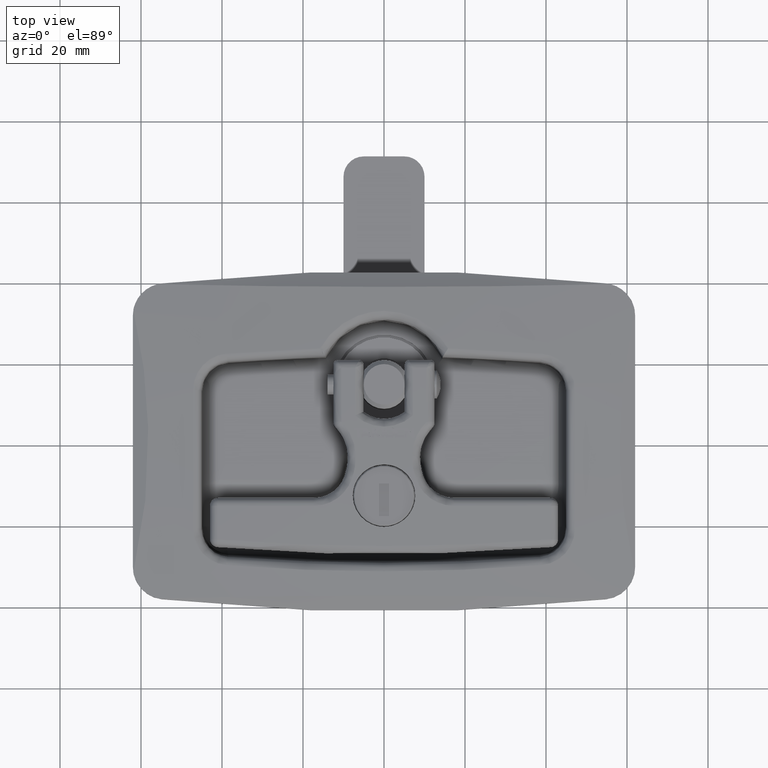
[diagram: clean part render]
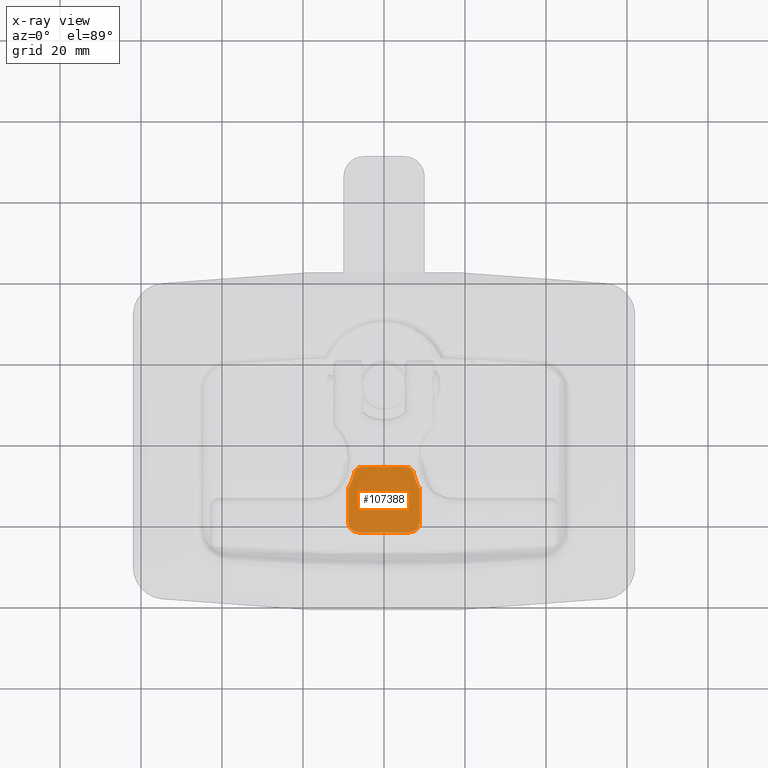
[diagram: x-ray — body ghosted, one internal face saturated and labeled with its STEP entity id]
A machine part, top view, then the same camera in x-ray: the body is ghosted and one INTERNAL B-rep face — a face not visible from any outside direction — is saturated and labeled: STEP entity #107388.
In plain terms, the highlighted planar face has unit normal (0, 0, 1).
Its self-contained STEP definition (entity closure, byte-faithful):
#44750 = EDGE_CURVE ( 'NONE', #107428, #107314, #112924, .T. ) ;
#44754 = ORIENTED_EDGE ( 'NONE', *, *, #44750, .T. ) ;
#51945 = CARTESIAN_POINT ( 'NONE',  ( 7.750233466093909000, -9.101742430316022600, -24.00000000000000000 ) ) ;
#51946 = CARTESIAN_POINT ( 'NONE',  ( 7.325904532231072100, -7.560043289058708800, -24.00000000000000000 ) ) ;
#52328 = AXIS2_PLACEMENT_3D ( 'NONE', #52392, #52391, #52390 ) ;
#52329 = CIRCLE ( 'NONE', #52328, 480.2077339804633300 ) ;
#52330 = CARTESIAN_POINT ( 'NONE',  ( -6.152111070720170700, -22.16832392820844400, -24.00000000000000000 ) ) ;
#52334 = CARTESIAN_POINT ( 'NONE',  ( 8.845299461620740500, -19.55599668142593800, -24.00000000000008500 ) ) ;
#52335 = CARTESIAN_POINT ( 'NONE',  ( 8.845299461620847100, -19.73198116399668900, -24.00000000000000700 ) ) ;
#52336 = CARTESIAN_POINT ( 'NONE',  ( 8.829917668631983600, -19.90553589965912800, -24.00000000000002800 ) ) ;
#52337 = CARTESIAN_POINT ( 'NONE',  ( 8.766339644266040000, -20.24746191933577300, -24.00000000000001800 ) ) ;
#52338 = CARTESIAN_POINT ( 'NONE',  ( 8.717281730762248800, -20.41777011301857700, -24.00000000000002500 ) ) ;
#52339 = CARTESIAN_POINT ( 'NONE',  ( 8.586051156097775900, -20.74131636712193600, -24.00000000000003200 ) ) ;
#52340 = CARTESIAN_POINT ( 'NONE',  ( 8.504513027258330000, -20.89437836561182500, -23.99999999999997900 ) ) ;
#52341 = CARTESIAN_POINT ( 'NONE',  ( 8.308647644356105000, -21.18256396352376600, -23.99999999999998200 ) ) ;
#52342 = CARTESIAN_POINT ( 'NONE',  ( 8.193336129919941900, -21.31792910883982000, -23.99999999999997900 ) ) ;
#52343 = CARTESIAN_POINT ( 'NONE',  ( 7.814398358859340200, -21.67669170596936500, -23.99999999999997500 ) ) ;
#52344 = CARTESIAN_POINT ( 'NONE',  ( 7.508005306153822100, -21.86185457505768100, -24.00000000000000700 ) ) ;
#52345 = CARTESIAN_POINT ( 'NONE',  ( 7.017714755949422800, -22.04339016092282600, -24.00000000000001400 ) ) ;
#52346 = CARTESIAN_POINT ( 'NONE',  ( 6.846726175703698100, -22.08910331485526500, -23.99999999999999600 ) ) ;
#52347 = CARTESIAN_POINT ( 'NONE',  ( 6.502191886690057200, -22.15020583722317200, -23.99999999999999600 ) ) ;
#52348 = CARTESIAN_POINT ( 'NONE',  ( 6.328028170634263800, -22.16605703918264300, -24.00000000000000400 ) ) ;
#52349 = CARTESIAN_POINT ( 'NONE',  ( 6.152111070743606200, -22.16832392820816700, -24.00000000000000000 ) ) ;
#52352 = CARTESIAN_POINT ( 'NONE',  ( 6.152111070743606200, -22.16832392820816700, -24.00000000000000000 ) ) ;
#52353 = B_SPLINE_CURVE_WITH_KNOTS ( 'NONE', 3,
 ( #52349, #52348, #52347, #52346, #52345, #52344, #52343, #52342, #52341, #52340, #52339, #52338, #52337, #52336, #52335, #52334 ),
 .UNSPECIFIED., .F., .F.,
 ( 4, 2, 2, 2, 2, 2, 2, 4 ),
 ( 0.0000000000000000000, 0.0005242809319807564700, 0.001048561863961512900, 0.002097123727923023700, 0.002621404659903776900, 0.003145685591884529700, 0.003669966523865283400, 0.004194247455846036200 ),
 .UNSPECIFIED. ) ;
#52360 = CARTESIAN_POINT ( 'NONE',  ( 8.845299461620740500, -19.55599668142593800, -24.00000000000008500 ) ) ;
#52372 = CARTESIAN_POINT ( 'NONE',  ( -6.152111070720170700, -22.16832392820844400, -24.00000000000000000 ) ) ;
#52373 = CARTESIAN_POINT ( 'NONE',  ( -6.504001473088844200, -22.16379600215499600, -24.00000000000000000 ) ) ;
#52374 = CARTESIAN_POINT ( 'NONE',  ( -6.853708156599626700, -22.10387877991446400, -23.99999999999998200 ) ) ;
#52375 = CARTESIAN_POINT ( 'NONE',  ( -7.342350092211686000, -21.92330770251799900, -23.99999999999998900 ) ) ;
#52376 = CARTESIAN_POINT ( 'NONE',  ( -7.502209431616590200, -21.84663252391850100, -24.00000000000000000 ) ) ;
#52377 = CARTESIAN_POINT ( 'NONE',  ( -7.799937305882594700, -21.66440997963269400, -23.99999999999999300 ) ) ;
#52378 = CARTESIAN_POINT ( 'NONE',  ( -7.937689001801031100, -21.55954604478294100, -23.99999999999999300 ) ) ;
#52379 = CARTESIAN_POINT ( 'NONE',  ( -8.190174742356690600, -21.32133121297903200, -23.99999999999998600 ) ) ;
#52380 = CARTESIAN_POINT ( 'NONE',  ( -8.305946010257944300, -21.18599400968426100, -23.99999999999998200 ) ) ;
#52381 = CARTESIAN_POINT ( 'NONE',  ( -8.502467954112887600, -20.89791934188492600, -23.99999999999997900 ) ) ;
#52382 = CARTESIAN_POINT ( 'NONE',  ( -8.584513096138067600, -20.74458814792272700, -24.00000000000002500 ) ) ;
#52383 = CARTESIAN_POINT ( 'NONE',  ( -8.782830784928483700, -20.25718854602289600, -24.00000000000003600 ) ) ;
#52384 = CARTESIAN_POINT ( 'NONE',  ( -8.845299461620863100, -19.90839693913133200, -24.00000000000000400 ) ) ;
#52385 = CARTESIAN_POINT ( 'NONE',  ( -8.845299461620756500, -19.55599668140769900, -24.00000000000008200 ) ) ;
#52388 = B_SPLINE_CURVE_WITH_KNOTS ( 'NONE', 3,
 ( #52385, #52384, #52383, #52382, #52381, #52380, #52379, #52378, #52377, #52376, #52375, #52374, #52373, #52372 ),
 .UNSPECIFIED., .F., .F.,
 ( 4, 2, 2, 2, 2, 2, 4 ),
 ( 0.0000000000000000000, 0.001056944724861337800, 0.001585417087292006700, 0.002113889449722675600, 0.002642361812153344800, 0.003170834174584013500, 0.004227778899445353000 ),
 .UNSPECIFIED. ) ;
#52389 = CARTESIAN_POINT ( 'NONE',  ( -8.845299461620756500, -19.55599668140769900, -24.00000000000008200 ) ) ;
#52390 = DIRECTION ( 'NONE',  ( 1.000000000000000000, 0.0000000000000000000, 0.0000000000000000000 ) ) ;
#52391 = DIRECTION ( 'NONE',  ( 0.0000000000000000000, 0.0000000000000000000, -1.000000000000000000 ) ) ;
#52392 = CARTESIAN_POINT ( 'NONE',  ( 0.0000000000000000000, 458.0000000000000000, -24.00000000000000000 ) ) ;
#52393 = VECTOR ( 'NONE', #52442, 1000.000000000000000 ) ;
#52442 = DIRECTION ( 'NONE',  ( 0.0000000000000000000, 1.000000000000000000, 0.0000000000000000000 ) ) ;
#52739 = DIRECTION ( 'NONE',  ( 1.000000000000000000, 0.0000000000000000000, 0.0000000000000000000 ) ) ;
#52740 = DIRECTION ( 'NONE',  ( 0.0000000000000000000, 0.0000000000000000000, 1.000000000000000000 ) ) ;
#52741 = CARTESIAN_POINT ( 'NONE',  ( -69.72459419812668100, -3.999999999999998200, -24.00000000000000000 ) ) ;
#52742 = AXIS2_PLACEMENT_3D ( 'NONE', #52741, #52740, #52739 ) ;
#52743 = FACE_OUTER_BOUND ( 'NONE', #107389, .T. ) ;
#52745 = PLANE ( 'NONE',  #52742 ) ;
#52787 = DIRECTION ( 'NONE',  ( 1.000000000000000000, 0.0000000000000000000, 0.0000000000000000000 ) ) ;
#52788 = DIRECTION ( 'NONE',  ( 0.0000000000000000000, 0.0000000000000000000, 1.000000000000000000 ) ) ;
#52789 = CARTESIAN_POINT ( 'NONE',  ( 24.00000000000000000, -3.799999999999996700, -24.00000000000000000 ) ) ;
#52790 = AXIS2_PLACEMENT_3D ( 'NONE', #52789, #52788, #52787 ) ;
#52791 = CIRCLE ( 'NONE', #52790, 17.09278751999999800 ) ;
#52804 = CARTESIAN_POINT ( 'NONE',  ( -7.384478227873218600, -7.558716002824835900, -24.00000000000000000 ) ) ;
#52805 = DIRECTION ( 'NONE',  ( 1.000000000000000000, 0.0000000000000000000, 0.0000000000000000000 ) ) ;
#52806 = DIRECTION ( 'NONE',  ( 0.0000000000000000000, 0.0000000000000000000, 1.000000000000000000 ) ) ;
#52807 = CARTESIAN_POINT ( 'NONE',  ( -24.00000000000000700, -3.799999999999996700, -24.00000000000000000 ) ) ;
#52808 = AXIS2_PLACEMENT_3D ( 'NONE', #52807, #52806, #52805 ) ;
#52809 = CIRCLE ( 'NONE', #52808, 17.03536057000000500 ) ;
#52811 = CARTESIAN_POINT ( 'NONE',  ( -7.818963773444290900, -9.127060764136491100, -24.00000000000000000 ) ) ;
#52812 = DIRECTION ( 'NONE',  ( 1.000000000000000000, 0.0000000000000000000, 0.0000000000000000000 ) ) ;
#52813 = DIRECTION ( 'NONE',  ( 0.0000000000000000000, 0.0000000000000000000, 1.000000000000000000 ) ) ;
#52814 = CARTESIAN_POINT ( 'NONE',  ( -17.31746318005574300, -5.999999999999997300, -24.00000000000000000 ) ) ;
#52815 = AXIS2_PLACEMENT_3D ( 'NONE', #52814, #52813, #52812 ) ;
#52816 = CIRCLE ( 'NONE', #52815, 10.00000000000000000 ) ;
#52817 = CARTESIAN_POINT ( 'NONE',  ( -8.845299461620756500, -11.31247982848253600, -24.00000000000008200 ) ) ;
#52824 = DIRECTION ( 'NONE',  ( 0.0000000000000000000, 1.000000000000000000, 0.0000000000000000000 ) ) ;
#52825 = VECTOR ( 'NONE', #52824, 1000.000000000000000 ) ;
#52826 = CARTESIAN_POINT ( 'NONE',  ( -8.845299461620756500, -28.42456018343342100, -24.00000000000008200 ) ) ;
#52830 = LINE ( 'NONE', #52826, #52825 ) ;
#52831 = CARTESIAN_POINT ( 'NONE',  ( 8.845299461620740500, -28.42456018343342100, -24.00000000000008500 ) ) ;
#52832 = LINE ( 'NONE', #52831, #52393 ) ;
#52834 = CARTESIAN_POINT ( 'NONE',  ( 8.845299461620740500, -11.40765913798443000, -24.00000000000000000 ) ) ;
#52840 = DIRECTION ( 'NONE',  ( 1.000000000000000000, 0.0000000000000000000, 0.0000000000000000000 ) ) ;
#52841 = DIRECTION ( 'NONE',  ( 0.0000000000000000000, 0.0000000000000000000, 1.000000000000000000 ) ) ;
#52842 = CARTESIAN_POINT ( 'NONE',  ( 17.25703071311549100, -5.999999999999999100, -24.00000000000000000 ) ) ;
#52843 = AXIS2_PLACEMENT_3D ( 'NONE', #52842, #52841, #52840 ) ;
#52844 = CIRCLE ( 'NONE', #52843, 9.999999999999994700 ) ;
#52848 = CARTESIAN_POINT ( 'NONE',  ( 5.374895026232258600, -5.999999999999998200, -24.00000000000000000 ) ) ;
#52849 = DIRECTION ( 'NONE',  ( 1.000000000000000000, 0.0000000000000000000, 0.0000000000000000000 ) ) ;
#52850 = VECTOR ( 'NONE', #52849, 1000.000000000000000 ) ;
#52851 = CARTESIAN_POINT ( 'NONE',  ( -69.72459419812668100, -5.999999999999998200, -24.00000000000000000 ) ) ;
#52852 = LINE ( 'NONE', #52851, #52850 ) ;
#52853 = CARTESIAN_POINT ( 'NONE',  ( -5.433768502199733100, -5.999999999999998200, -24.00000000000000000 ) ) ;
#52854 = DIRECTION ( 'NONE',  ( 1.000000000000000000, 0.0000000000000000000, 0.0000000000000000000 ) ) ;
#52855 = DIRECTION ( 'NONE',  ( 0.0000000000000000000, 0.0000000000000000000, -1.000000000000000000 ) ) ;
#52856 = CARTESIAN_POINT ( 'NONE',  ( -5.433768502199734800, -7.999999999999992900, -24.00000000000000000 ) ) ;
#52857 = AXIS2_PLACEMENT_3D ( 'NONE', #52856, #52855, #52854 ) ;
#52858 = CIRCLE ( 'NONE', #52857, 2.000000000000000000 ) ;
#107314 = VERTEX_POINT ( 'NONE', #51946 ) ;
#107315 = VERTEX_POINT ( 'NONE', #51945 ) ;
#107319 = ORIENTED_EDGE ( 'NONE', *, *, #107431, .T. ) ;
#107353 = VERTEX_POINT ( 'NONE', #52360 ) ;
#107355 = ORIENTED_EDGE ( 'NONE', *, *, #107356, .F. ) ;
#107356 = EDGE_CURVE ( 'NONE', #107358, #107353, #52353, .T. ) ;
#107358 = VERTEX_POINT ( 'NONE', #52352 ) ;
#107361 = ORIENTED_EDGE ( 'NONE', *, *, #107362, .T. ) ;
#107362 = EDGE_CURVE ( 'NONE', #107358, #107364, #52329, .T. ) ;
#107364 = VERTEX_POINT ( 'NONE', #52330 ) ;
#107366 = ORIENTED_EDGE ( 'NONE', *, *, #107368, .F. ) ;
#107368 = EDGE_CURVE ( 'NONE', #107369, #107364, #52388, .T. ) ;
#107369 = VERTEX_POINT ( 'NONE', #52389 ) ;
#107372 = ORIENTED_EDGE ( 'NONE', *, *, #107405, .T. ) ;
#107388 = ADVANCED_FACE ( 'NONE', ( #52743 ), #52745, .F. ) ;
#107389 = EDGE_LOOP ( 'NONE', ( #107392, #107319, #107435, #107355, #107361, #107366, #107372, #107409, #107414, #107420, #107426, #44754 ) ) ;
#107392 = ORIENTED_EDGE ( 'NONE', *, *, #107393, .T. ) ;
#107393 = EDGE_CURVE ( 'NONE', #107314, #107315, #52791, .T. ) ;
#107405 = EDGE_CURVE ( 'NONE', #107369, #107407, #52830, .T. ) ;
#107407 = VERTEX_POINT ( 'NONE', #52817 ) ;
#107409 = ORIENTED_EDGE ( 'NONE', *, *, #107411, .T. ) ;
#107411 = EDGE_CURVE ( 'NONE', #107407, #107412, #52816, .T. ) ;
#107412 = VERTEX_POINT ( 'NONE', #52811 ) ;
#107414 = ORIENTED_EDGE ( 'NONE', *, *, #107416, .T. ) ;
#107416 = EDGE_CURVE ( 'NONE', #107412, #107418, #52809, .T. ) ;
#107418 = VERTEX_POINT ( 'NONE', #52804 ) ;
#107420 = ORIENTED_EDGE ( 'NONE', *, *, #107422, .T. ) ;
#107422 = EDGE_CURVE ( 'NONE', #107418, #107424, #52858, .T. ) ;
#107424 = VERTEX_POINT ( 'NONE', #52853 ) ;
#107426 = ORIENTED_EDGE ( 'NONE', *, *, #107427, .T. ) ;
#107427 = EDGE_CURVE ( 'NONE', #107424, #107428, #52852, .T. ) ;
#107428 = VERTEX_POINT ( 'NONE', #52848 ) ;
#107431 = EDGE_CURVE ( 'NONE', #107315, #107433, #52844, .T. ) ;
#107433 = VERTEX_POINT ( 'NONE', #52834 ) ;
#107435 = ORIENTED_EDGE ( 'NONE', *, *, #107436, .F. ) ;
#107436 = EDGE_CURVE ( 'NONE', #107353, #107433, #52832, .T. ) ;
#112916 = DIRECTION ( 'NONE',  ( 1.000000000000000000, 8.673617379884035500E-016, 0.0000000000000000000 ) ) ;
#112918 = DIRECTION ( 'NONE',  ( 0.0000000000000000000, 0.0000000000000000000, -1.000000000000000000 ) ) ;
#112920 = CARTESIAN_POINT ( 'NONE',  ( 5.374895026232260300, -7.999999999999992900, -24.00000000000000000 ) ) ;
#112922 = AXIS2_PLACEMENT_3D ( 'NONE', #112920, #112918, #112916 ) ;
#112924 = CIRCLE ( 'NONE', #112922, 2.000000000000000000 ) ;